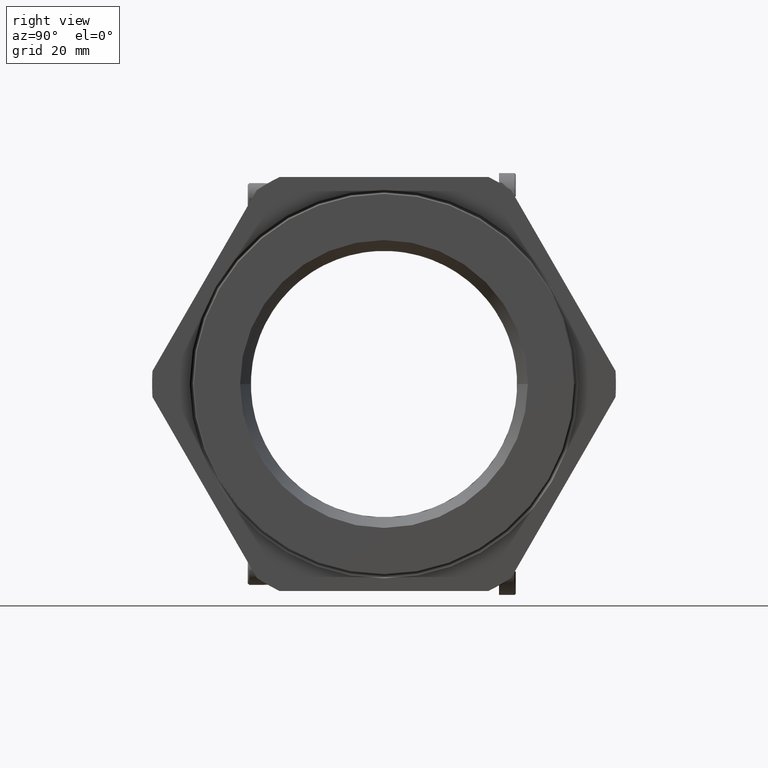
[diagram: clean part render]
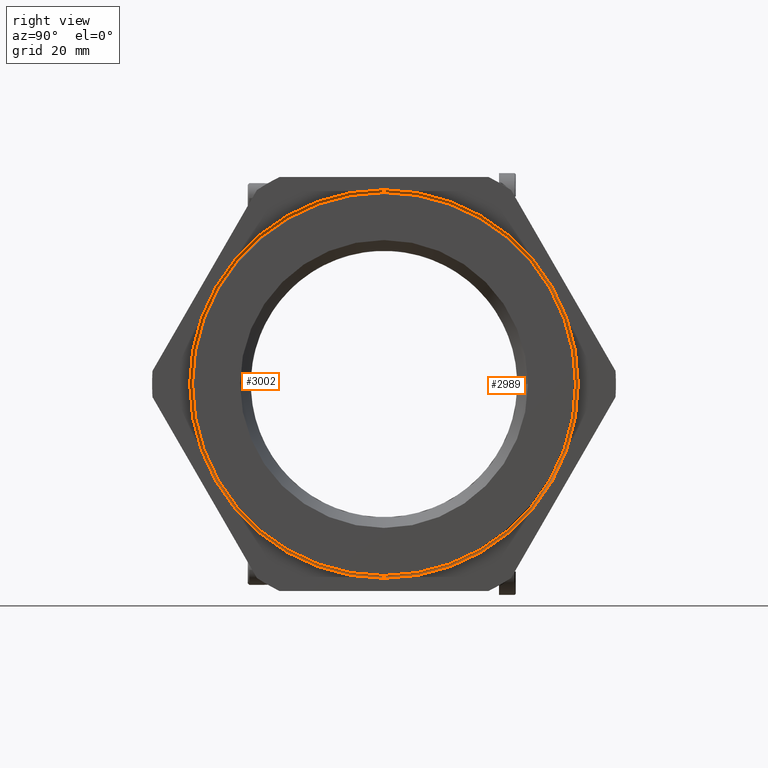
[diagram: same view with one multi-face feature highlighted, each face labeled with its STEP entity id]
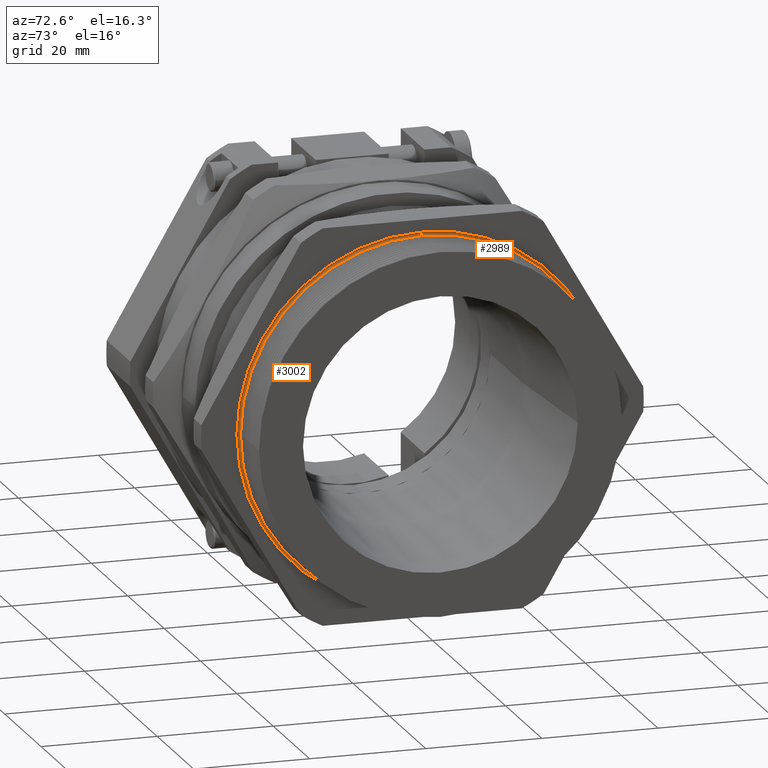
[diagram: same view with one multi-face feature highlighted, each face labeled with its STEP entity id]
A machine part, right view. The highlighted faces form ONE feature: a constant-radius fillet chain: 2 tangent blend faces with common blend radius 0.4445 mm. The faces share edges in the B-rep.
A second angle (auxiliary view) of the same feature is appended — it is thin or edge-on in the first view.
Their STEP definitions:
[1] entity #3002 (Torus):
#2991 = EDGE_CURVE ( 'NONE', #2992, #2999, #8494, .T. ) ;
#2992 = VERTEX_POINT ( 'NONE', #8489 ) ;
#2994 = VERTEX_POINT ( 'NONE', #8488 ) ;
#2997 = VERTEX_POINT ( 'NONE', #8548 ) ;
#2999 = VERTEX_POINT ( 'NONE', #8547 ) ;
#3002 = ADVANCED_FACE ( 'NONE', ( #8541 ), #8540, .F. ) ;
#3003 = ORIENTED_EDGE ( 'NONE', *, *, #3004, .F. ) ;
#3004 = EDGE_CURVE ( 'NONE', #2992, #2994, #8535, .T. ) ;
#3060 = ORIENTED_EDGE ( 'NONE', *, *, #3061, .T. ) ;
#3061 = EDGE_CURVE ( 'NONE', #2999, #2997, #8709, .T. ) ;
#3062 = ORIENTED_EDGE ( 'NONE', *, *, #3065, .F. ) ;
#3065 = EDGE_CURVE ( 'NONE', #2994, #2997, #8704, .T. ) ;
#3066 = EDGE_LOOP ( 'NONE', ( #3067, #3060, #3062, #3003 ) ) ;
#3067 = ORIENTED_EDGE ( 'NONE', *, *, #2991, .T. ) ;
#8488 = CARTESIAN_POINT ( 'NONE',  ( 0.5632500000000000300, 0.0000000000000000000, 1.257471405209656100 ) ) ;
#8489 = CARTESIAN_POINT ( 'NONE',  ( 0.5632500000000000300, 1.539958331409329700E-016, -1.257471405209656100 ) ) ;
#8490 = DIRECTION ( 'NONE',  ( 0.0000000000000000000, -1.224646799147352500E-016, 1.000000000000000000 ) ) ;
#8491 = DIRECTION ( 'NONE',  ( 0.0000000000000000000, 1.000000000000000000, 1.224646799147353200E-016 ) ) ;
#8492 = CARTESIAN_POINT ( 'NONE',  ( 0.5642499999999998100, 1.518562030942717800E-016, -1.240000000000000000 ) ) ;
#8493 = AXIS2_PLACEMENT_3D ( 'NONE', #8492, #8491, #8490 ) ;
#8494 = CIRCLE ( 'NONE', #8493, 0.01750000000000001900 ) ;
#8531 = DIRECTION ( 'NONE',  ( 0.0000000000000000000, -1.000000000000000000, 0.0000000000000000000 ) ) ;
#8532 = DIRECTION ( 'NONE',  ( -1.000000000000000000, 3.248221276105107800E-019, 0.0000000000000000000 ) ) ;
#8533 = CARTESIAN_POINT ( 'NONE',  ( 0.5632500000000000300, 3.248221276104452900E-022, 0.0000000000000000000 ) ) ;
#8534 = AXIS2_PLACEMENT_3D ( 'NONE', #8533, #8532, #8531 ) ;
#8535 = CIRCLE ( 'NONE', #8534, 1.257471405209656100 ) ;
#8536 = DIRECTION ( 'NONE',  ( 0.0000000000000000000, 0.0000000000000000000, 1.000000000000000000 ) ) ;
#8537 = DIRECTION ( 'NONE',  ( -1.000000000000000000, 0.0000000000000000000, 0.0000000000000000000 ) ) ;
#8538 = CARTESIAN_POINT ( 'NONE',  ( 0.5642499999999998100, 0.0000000000000000000, 0.0000000000000000000 ) ) ;
#8539 = AXIS2_PLACEMENT_3D ( 'NONE', #8538, #8537, #8536 ) ;
#8540 = TOROIDAL_SURFACE ( 'NONE', #8539, 1.240000000000000000, 0.01749999999999998400 ) ;
#8541 = FACE_OUTER_BOUND ( 'NONE', #3066, .T. ) ;
#8547 = CARTESIAN_POINT ( 'NONE',  ( 0.5642499999999998100, 1.497130711957639200E-016, -1.222499999999999900 ) ) ;
#8548 = CARTESIAN_POINT ( 'NONE',  ( 0.5642499999999998100, 0.0000000000000000000, 1.222499999999999900 ) ) ;
#8700 = DIRECTION ( 'NONE',  ( 0.0000000000000000000, 0.0000000000000000000, -1.000000000000000000 ) ) ;
#8701 = DIRECTION ( 'NONE',  ( 0.0000000000000000000, -1.000000000000000000, 0.0000000000000000000 ) ) ;
#8702 = CARTESIAN_POINT ( 'NONE',  ( 0.5642499999999998100, 0.0000000000000000000, 1.240000000000000000 ) ) ;
#8703 = AXIS2_PLACEMENT_3D ( 'NONE', #8702, #8701, #8700 ) ;
#8704 = CIRCLE ( 'NONE', #8703, 0.01750000000000001900 ) ;
#8705 = DIRECTION ( 'NONE',  ( 0.0000000000000000000, 0.0000000000000000000, 1.000000000000000000 ) ) ;
#8706 = DIRECTION ( 'NONE',  ( -1.000000000000000000, 0.0000000000000000000, 0.0000000000000000000 ) ) ;
#8707 = CARTESIAN_POINT ( 'NONE',  ( 0.5642499999999998100, 0.0000000000000000000, 0.0000000000000000000 ) ) ;
#8708 = AXIS2_PLACEMENT_3D ( 'NONE', #8707, #8706, #8705 ) ;
#8709 = CIRCLE ( 'NONE', #8708, 1.222499999999999900 ) ;
[2] entity #2989 (Torus):
#2989 = ADVANCED_FACE ( 'NONE', ( #8500 ), #8499, .F. ) ;
#2990 = EDGE_LOOP ( 'NONE', ( #3007, #3063, #2996, #2993 ) ) ;
#2991 = EDGE_CURVE ( 'NONE', #2992, #2999, #8494, .T. ) ;
#2992 = VERTEX_POINT ( 'NONE', #8489 ) ;
#2993 = ORIENTED_EDGE ( 'NONE', *, *, #3001, .F. ) ;
#2994 = VERTEX_POINT ( 'NONE', #8488 ) ;
#2995 = EDGE_CURVE ( 'NONE', #2997, #2999, #8487, .T. ) ;
#2996 = ORIENTED_EDGE ( 'NONE', *, *, #2991, .F. ) ;
#2997 = VERTEX_POINT ( 'NONE', #8548 ) ;
#2999 = VERTEX_POINT ( 'NONE', #8547 ) ;
#3001 = EDGE_CURVE ( 'NONE', #2994, #2992, #8546, .T. ) ;
#3007 = ORIENTED_EDGE ( 'NONE', *, *, #3065, .T. ) ;
#3063 = ORIENTED_EDGE ( 'NONE', *, *, #2995, .T. ) ;
#3065 = EDGE_CURVE ( 'NONE', #2994, #2997, #8704, .T. ) ;
#8487 = CIRCLE ( 'NONE', #8552, 1.222499999999999900 ) ;
#8488 = CARTESIAN_POINT ( 'NONE',  ( 0.5632500000000000300, 0.0000000000000000000, 1.257471405209656100 ) ) ;
#8489 = CARTESIAN_POINT ( 'NONE',  ( 0.5632500000000000300, 1.539958331409329700E-016, -1.257471405209656100 ) ) ;
#8490 = DIRECTION ( 'NONE',  ( 0.0000000000000000000, -1.224646799147352500E-016, 1.000000000000000000 ) ) ;
#8491 = DIRECTION ( 'NONE',  ( 0.0000000000000000000, 1.000000000000000000, 1.224646799147353200E-016 ) ) ;
#8492 = CARTESIAN_POINT ( 'NONE',  ( 0.5642499999999998100, 1.518562030942717800E-016, -1.240000000000000000 ) ) ;
#8493 = AXIS2_PLACEMENT_3D ( 'NONE', #8492, #8491, #8490 ) ;
#8494 = CIRCLE ( 'NONE', #8493, 0.01750000000000001900 ) ;
#8495 = DIRECTION ( 'NONE',  ( 0.0000000000000000000, 0.0000000000000000000, 1.000000000000000000 ) ) ;
#8496 = DIRECTION ( 'NONE',  ( -1.000000000000000000, 0.0000000000000000000, 0.0000000000000000000 ) ) ;
#8497 = CARTESIAN_POINT ( 'NONE',  ( 0.5642499999999998100, 0.0000000000000000000, 0.0000000000000000000 ) ) ;
#8498 = AXIS2_PLACEMENT_3D ( 'NONE', #8497, #8496, #8495 ) ;
#8499 = TOROIDAL_SURFACE ( 'NONE', #8498, 1.240000000000000000, 0.01749999999999998400 ) ;
#8500 = FACE_OUTER_BOUND ( 'NONE', #2990, .T. ) ;
#8542 = DIRECTION ( 'NONE',  ( 0.0000000000000000000, -1.000000000000000000, 0.0000000000000000000 ) ) ;
#8543 = DIRECTION ( 'NONE',  ( -1.000000000000000000, 3.248221276105107800E-019, 0.0000000000000000000 ) ) ;
#8544 = CARTESIAN_POINT ( 'NONE',  ( 0.5632500000000000300, 3.248221276104452900E-022, 0.0000000000000000000 ) ) ;
#8545 = AXIS2_PLACEMENT_3D ( 'NONE', #8544, #8543, #8542 ) ;
#8546 = CIRCLE ( 'NONE', #8545, 1.257471405209656100 ) ;
#8547 = CARTESIAN_POINT ( 'NONE',  ( 0.5642499999999998100, 1.497130711957639200E-016, -1.222499999999999900 ) ) ;
#8548 = CARTESIAN_POINT ( 'NONE',  ( 0.5642499999999998100, 0.0000000000000000000, 1.222499999999999900 ) ) ;
#8549 = DIRECTION ( 'NONE',  ( 0.0000000000000000000, 0.0000000000000000000, 1.000000000000000000 ) ) ;
#8550 = DIRECTION ( 'NONE',  ( -1.000000000000000000, 0.0000000000000000000, 0.0000000000000000000 ) ) ;
#8551 = CARTESIAN_POINT ( 'NONE',  ( 0.5642499999999998100, 0.0000000000000000000, 0.0000000000000000000 ) ) ;
#8552 = AXIS2_PLACEMENT_3D ( 'NONE', #8551, #8550, #8549 ) ;
#8700 = DIRECTION ( 'NONE',  ( 0.0000000000000000000, 0.0000000000000000000, -1.000000000000000000 ) ) ;
#8701 = DIRECTION ( 'NONE',  ( 0.0000000000000000000, -1.000000000000000000, 0.0000000000000000000 ) ) ;
#8702 = CARTESIAN_POINT ( 'NONE',  ( 0.5642499999999998100, 0.0000000000000000000, 1.240000000000000000 ) ) ;
#8703 = AXIS2_PLACEMENT_3D ( 'NONE', #8702, #8701, #8700 ) ;
#8704 = CIRCLE ( 'NONE', #8703, 0.01750000000000001900 ) ;